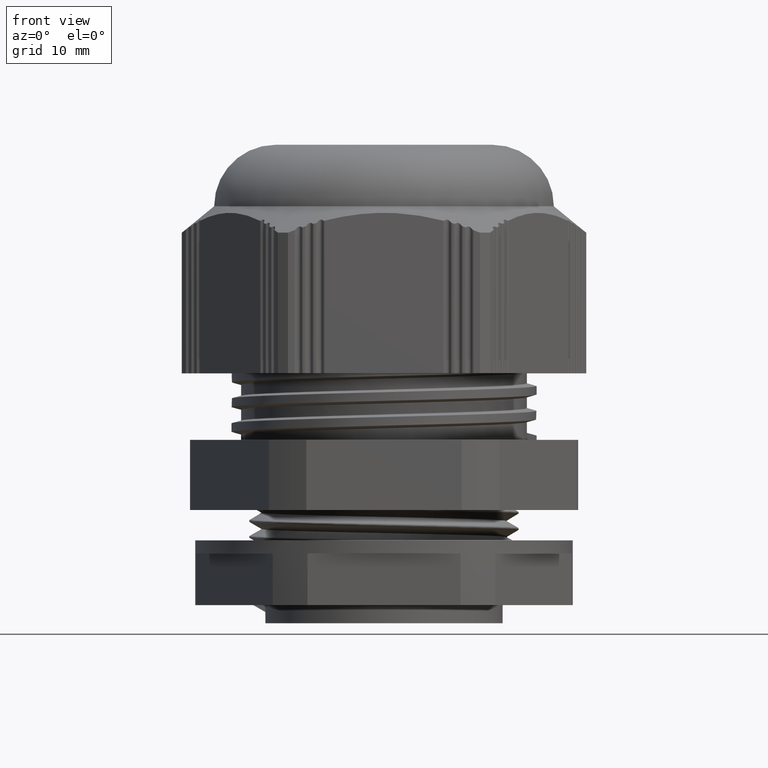
[diagram: clean part render]
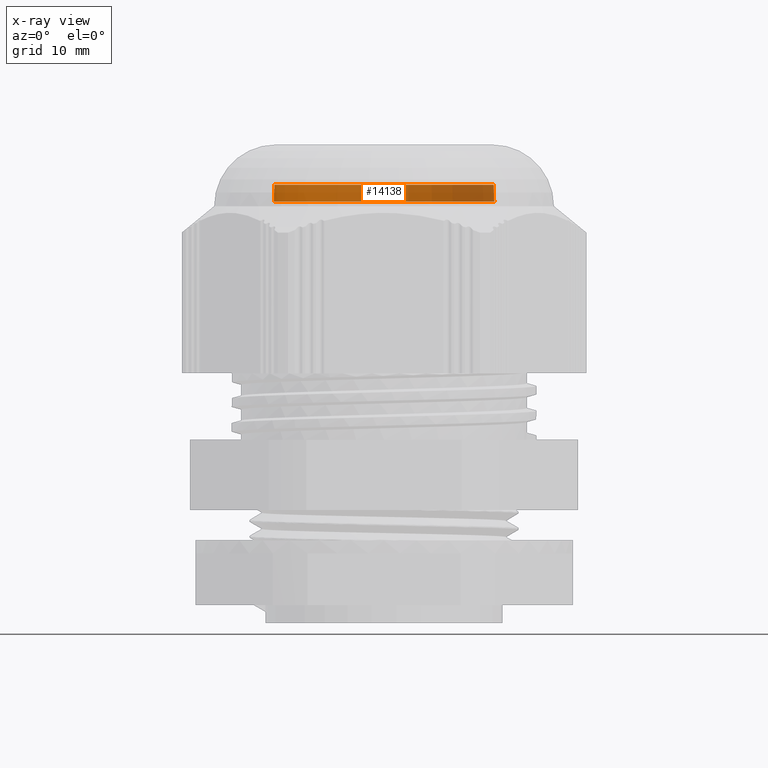
[diagram: x-ray — body ghosted, one internal face saturated and labeled with its STEP entity id]
A machine part, front view, then the same camera in x-ray: the body is ghosted and one INTERNAL B-rep face — a face not visible from any outside direction — is saturated and labeled: STEP entity #14138.
In plain terms, the highlighted conical surface has half-angle 2 deg.
Its self-contained STEP definition (entity closure, byte-faithful):
#31 = FACE_OUTER_BOUND ( 'NONE', #10501, .T. ) ;
#32 = DIRECTION ( 'NONE',  ( 0.0000000000000000000, 0.0000000000000000000, -1.000000000000000000 ) ) ;
#48 = DIRECTION ( 'NONE',  ( -1.000000000000000000, 0.0000000000000000000, 0.0000000000000000000 ) ) ;
#61 = CARTESIAN_POINT ( 'NONE',  ( -5.856426454897700800E-012, -3.471528620124786400E-011, 36.21844550262503800 ) ) ;
#1616 = VERTEX_POINT ( 'NONE', #2573 ) ;
#1630 = VERTEX_POINT ( 'NONE', #2540 ) ;
#1634 = VERTEX_POINT ( 'NONE', #2586 ) ;
#1689 = VERTEX_POINT ( 'NONE', #2589 ) ;
#2540 = CARTESIAN_POINT ( 'NONE',  ( -10.16825268983425400, -3.471528620124786400E-011, 40.65000000001445100 ) ) ;
#2573 = CARTESIAN_POINT ( 'NONE',  ( -10.22248203111746400, -3.471528620124786400E-011, 39.09707484766278900 ) ) ;
#2586 = CARTESIAN_POINT ( 'NONE',  ( 10.16825268982254100, -3.471403762884744600E-011, 40.65000000001445100 ) ) ;
#2589 = CARTESIAN_POINT ( 'NONE',  ( 10.22248203110575200, -3.471403430825798400E-011, 39.09707484766278900 ) ) ;
#3534 = ORIENTED_EDGE ( 'NONE', *, *, #13036, .F. ) ;
#3548 = ORIENTED_EDGE ( 'NONE', *, *, #13043, .F. ) ;
#3570 = CONICAL_SURFACE ( 'NONE', #3573, 10.32300598292185300, 0.03490658503988679900 ) ;
#3573 = AXIS2_PLACEMENT_3D ( 'NONE', #61, #32, #48 ) ;
#3615 = ORIENTED_EDGE ( 'NONE', *, *, #13085, .T. ) ;
#3664 = ORIENTED_EDGE ( 'NONE', *, *, #13071, .T. ) ;
#4207 = CIRCLE ( 'NONE', #4215, 10.22248203111160700 ) ;
#4215 = AXIS2_PLACEMENT_3D ( 'NONE', #12142, #12132, #12155 ) ;
#4231 = VECTOR ( 'NONE', #12352, 1000.000000000000100 ) ;
#4947 = VECTOR ( 'NONE', #11683, 1000.000000000000100 ) ;
#4949 = CIRCLE ( 'NONE', #4956, 10.16825268982839800 ) ;
#4956 = AXIS2_PLACEMENT_3D ( 'NONE', #5120, #5116, #5115 ) ;
#5115 = DIRECTION ( 'NONE',  ( -1.000000000000000000, 0.0000000000000000000, 0.0000000000000000000 ) ) ;
#5116 = DIRECTION ( 'NONE',  ( -0.0000000000000000000, -0.0000000000000000000, 1.000000000000000000 ) ) ;
#5120 = CARTESIAN_POINT ( 'NONE',  ( -5.856426454897700800E-012, -3.471528620124786400E-011, 40.65000000001445100 ) ) ;
#10501 = EDGE_LOOP ( 'NONE', ( #3548, #3615, #3664, #3534 ) ) ;
#11674 = CARTESIAN_POINT ( 'NONE',  ( -10.32300598292770900, -3.471528620124786400E-011, 36.21844550262503800 ) ) ;
#11683 = DIRECTION ( 'NONE',  ( -0.03489949670250117000, 0.0000000000000000000, -0.9993908270190956500 ) ) ;
#11692 = LINE ( 'NONE', #11674, #4947 ) ;
#12132 = DIRECTION ( 'NONE',  ( -0.0000000000000000000, -0.0000000000000000000, 1.000000000000000000 ) ) ;
#12142 = CARTESIAN_POINT ( 'NONE',  ( -5.856426454897700800E-012, -3.471528620124786400E-011, 39.09707484766278900 ) ) ;
#12155 = DIRECTION ( 'NONE',  ( -1.000000000000000000, 0.0000000000000000000, 0.0000000000000000000 ) ) ;
#12331 = LINE ( 'NONE', #12338, #4231 ) ;
#12338 = CARTESIAN_POINT ( 'NONE',  ( 10.32300598291599600, -3.471402199762440600E-011, 36.21844550262503800 ) ) ;
#12352 = DIRECTION ( 'NONE',  ( 0.03489949670250117000, 4.273955692857166500E-018, -0.9993908270190956500 ) ) ;
#13036 = EDGE_CURVE ( 'NONE', #1630, #1616, #11692, .T. ) ;
#13043 = EDGE_CURVE ( 'NONE', #1634, #1630, #4949, .T. ) ;
#13071 = EDGE_CURVE ( 'NONE', #1689, #1616, #4207, .T. ) ;
#13085 = EDGE_CURVE ( 'NONE', #1634, #1689, #12331, .T. ) ;
#14138 = ADVANCED_FACE ( 'NONE', ( #31 ), #3570, .T. ) ;